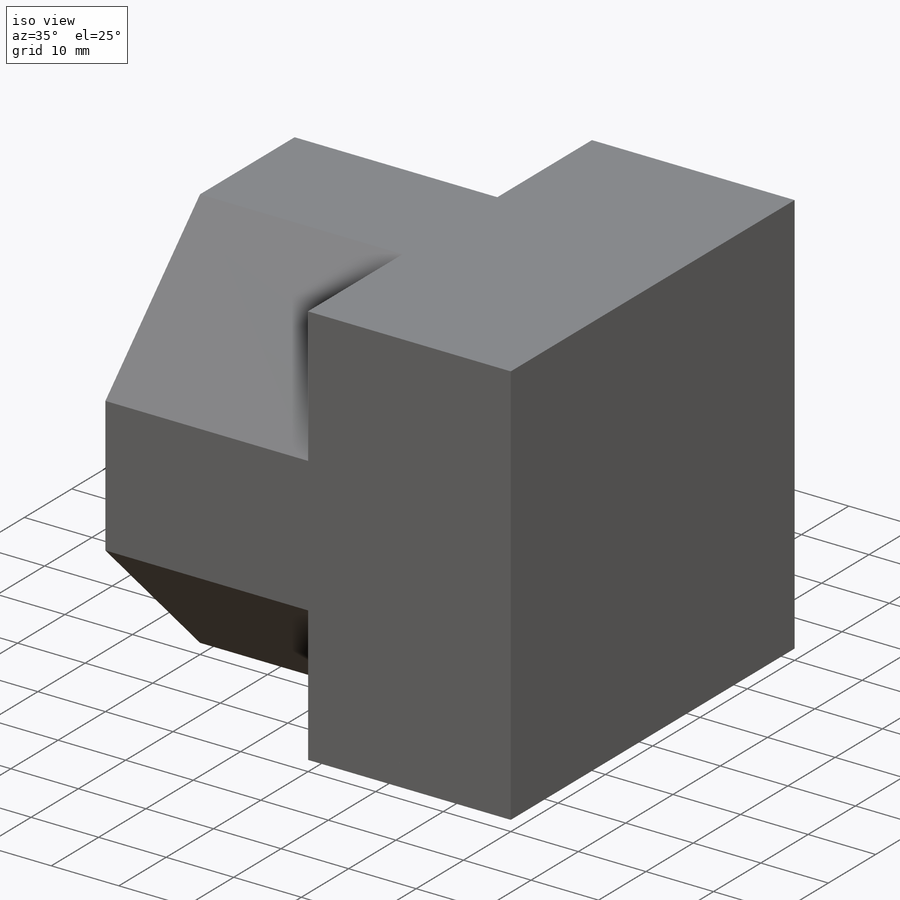
[diagram: iso view]
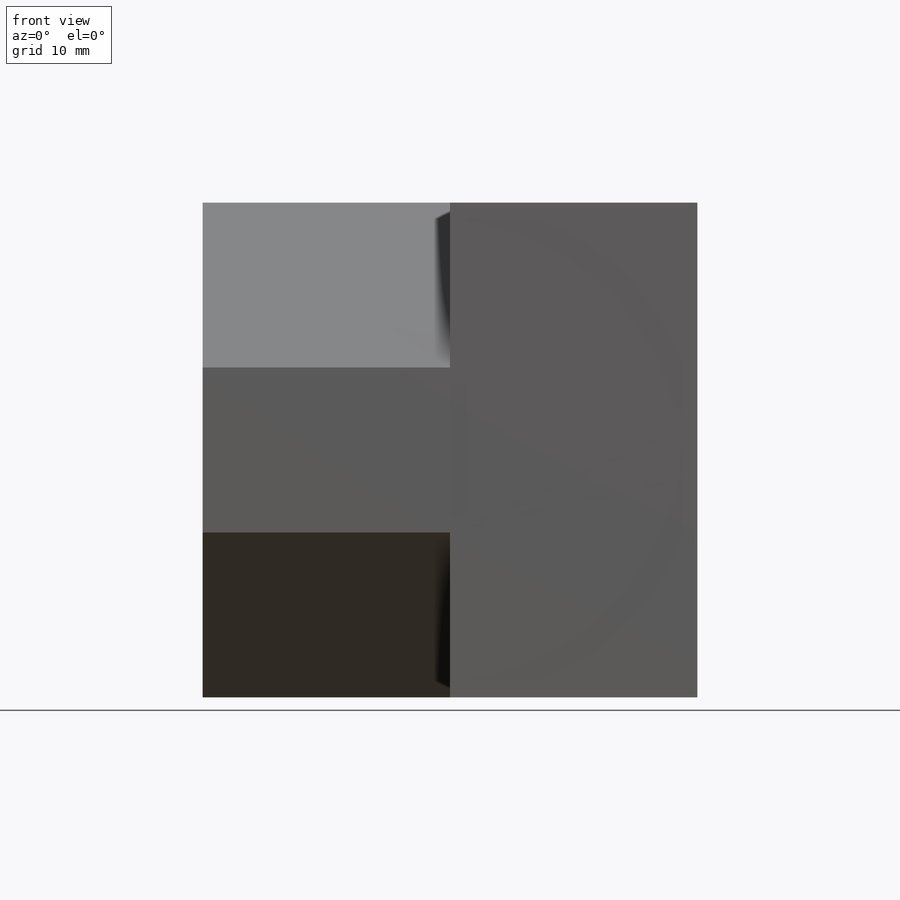
[diagram: front view]
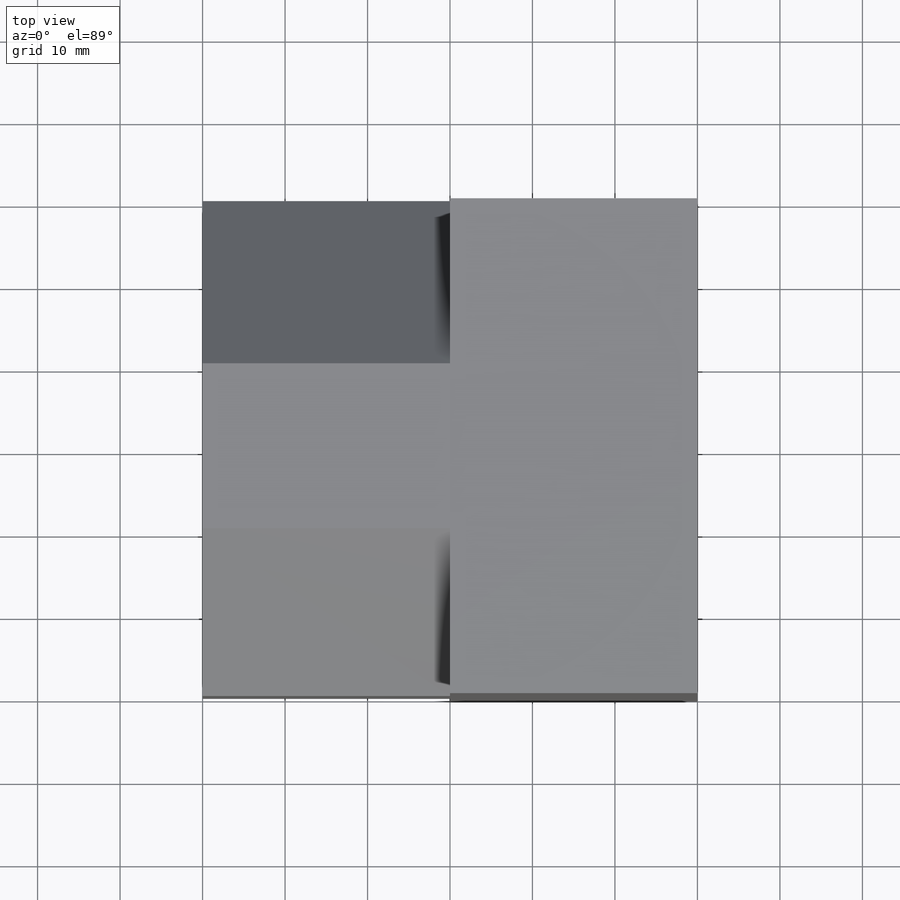
[diagram: top view]
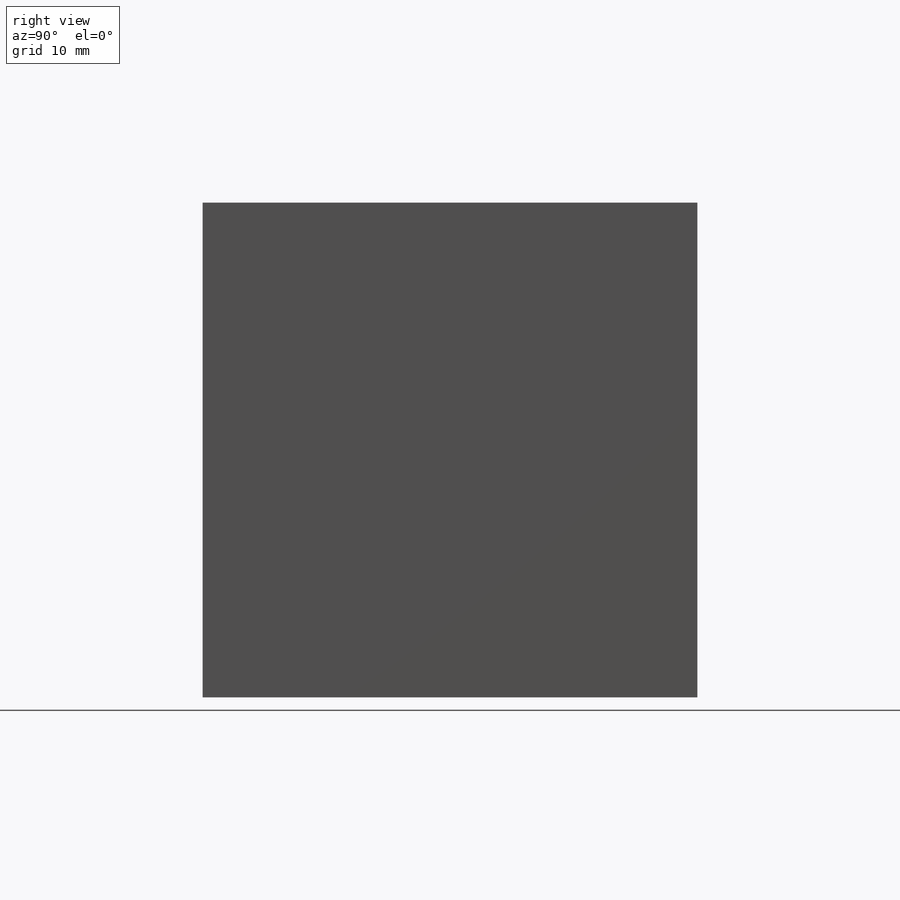
[diagram: right view]
SOLIDWORKS PART (.sldprt)
format: sldprt  version: not decoded by parser v0  size: 217,600 bytes
history: native  units: mm
features: sketch x8, cut_extrude x6, extrude x2, material x1 (+13 scaffold rows collapsed)
feature tree (30):
  scaffold x13  (default folders/planes/origin — collapsed)
  material  "Material <not specified>"
  sketch  "Sketch1"  dims[D1=60.0mm D2=60.0mm]
  extrude  "Boss-Extrude1"  Depth=60mm
  sketch  "Sketch3"  dims[D1=30.0mm D2=20.0mm]
  cut_extrude  "Cut-Extrude1"  Depth=20mm
  sketch  "Sketch4"  dims[D1=20.0mm D2=30.0mm]
  cut_extrude  "Cut-Extrude2"  Depth=20mm
  sketch  "Sketch5"
  extrude  "Boss-Extrude2"  Depth=30mm
  sketch  "Sketch6"  dims[D1=20.0mm]
  cut_extrude  "Cut-Extrude3"  Depth=30mm
  sketch  "Sketch7"  dims[D1=20.0mm]
  cut_extrude  "Cut-Extrude4"  Depth=30mm
  sketch  "Sketch8"  dims[D1=30.0mm D2=10.0mm D3=30.0mm D4=30.0mm]
  cut_extrude  "Cut-Extrude6"  Depth=0.0001mm
  sketch  "Sketch9"  dims[D1=30.0mm D2=10.0mm D3=30.0mm]
  cut_extrude  "Cut-Extrude7"  Depth=0.0001mm
decode coverage: 15 of 16 modeling features carry decoded parameters
note: suppression state not decoded; provenance and decode notes live in map.json
